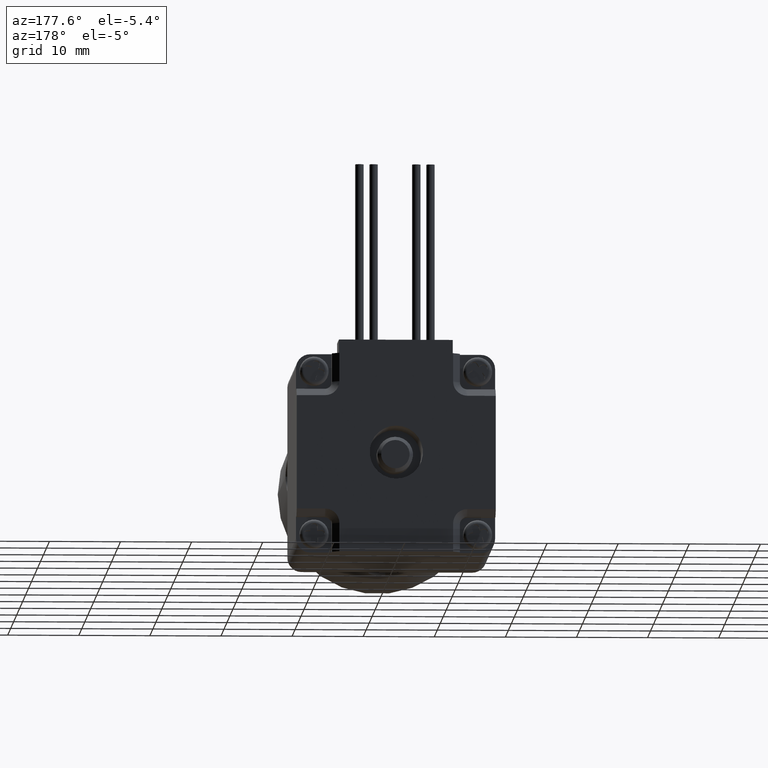
[diagram: clean part render]
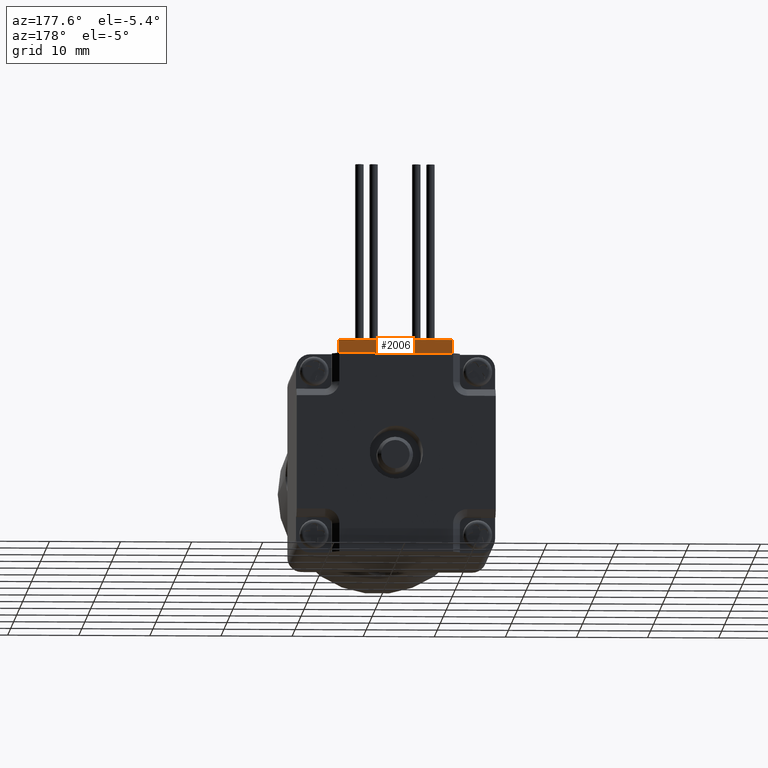
[diagram: same view with one face highlighted and labeled with its STEP entity id]
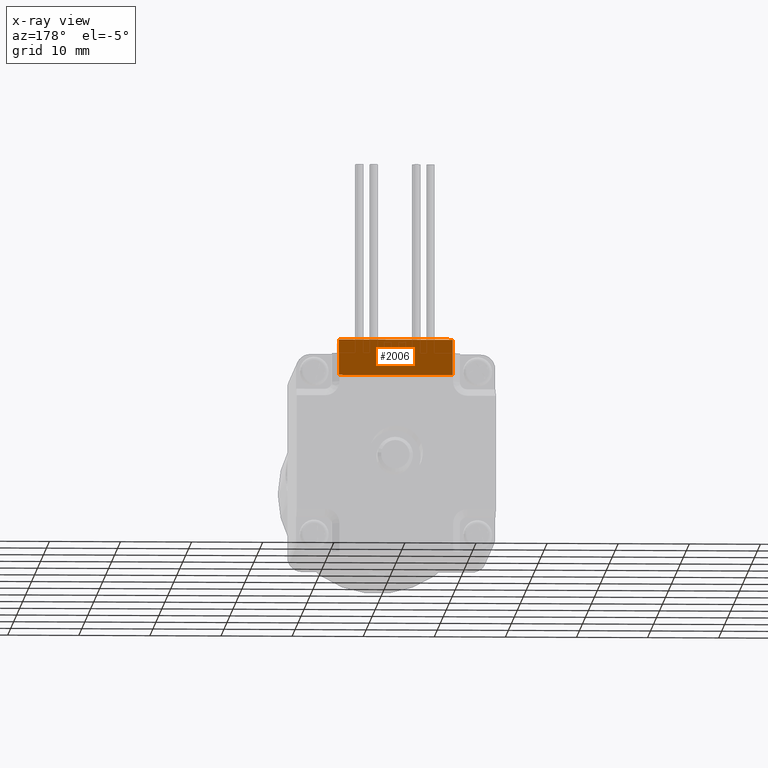
[diagram: x-ray of the same camera — body ghosted, the highlighted face saturated]
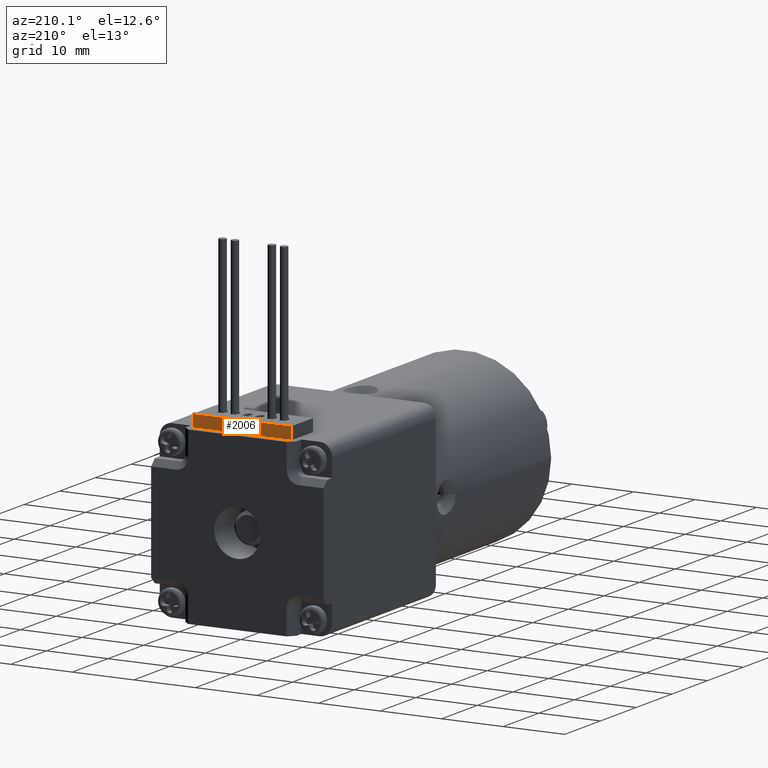
[diagram: same view with one face highlighted and labeled with its STEP entity id]
A machine part, auxiliary view. The second image highlights one B-rep face of the part: STEP entity #2006.
The next image is the same camera in x-ray: the body ghosted, the highlighted face saturated — about 0% of this face is hidden behind the body in this view.
A second angle (auxiliary view) of the same face is appended — the face is thin or edge-on in the first view.
In plain terms, the highlighted planar face has unit normal (-0, -1, 0).
Its self-contained STEP definition (entity closure, byte-faithful):
#89 = CARTESIAN_POINT ( 'NONE',  ( -8.000000000000000000, 0.000000000000000000, 2.500000000000000000 ) ) ;
#596 = VERTEX_POINT ( 'NONE', #16154 ) ;
#798 = VERTEX_POINT ( 'NONE', #24814 ) ;
#1264 = CARTESIAN_POINT ( 'NONE',  ( -8.000000000000000000, 0.000000000000000000, -2.500000000000000000 ) ) ;
#2006 = ADVANCED_FACE ( 'NONE', ( #8600 ), #13581, .F. ) ;
#2583 = EDGE_CURVE ( 'NONE', #596, #27056, #8569, .T. ) ;
#2879 = VECTOR ( 'NONE', #28799, 1000.000000000000000 ) ;
#4233 = VECTOR ( 'NONE', #6916, 1000.000000000000000 ) ;
#6916 = DIRECTION ( 'NONE',  ( -1.000000000000000000, -0.000000000000000000, -0.000000000000000000 ) ) ;
#8569 = LINE ( 'NONE', #31459, #4233 ) ;
#8600 = FACE_OUTER_BOUND ( 'NONE', #21750, .T. ) ;
#8892 = EDGE_CURVE ( 'NONE', #798, #596, #16750, .T. ) ;
#9051 = EDGE_CURVE ( 'NONE', #21996, #798, #17075, .T. ) ;
#10279 = AXIS2_PLACEMENT_3D ( 'NONE', #21099, #14044, #30732 ) ;
#10471 = DIRECTION ( 'NONE',  ( 1.000000000000000000, 0.000000000000000000, 0.000000000000000000 ) ) ;
#10828 = VECTOR ( 'NONE', #16775, 1000.000000000000000 ) ;
#13581 = PLANE ( 'NONE',  #10279 ) ;
#13904 = CARTESIAN_POINT ( 'NONE',  ( -8.000000000000000000, 0.000000000000000000, 2.500000000000000000 ) ) ;
#14044 = DIRECTION ( 'NONE',  ( 0.000000000000000000, 1.000000000000000000, 0.000000000000000000 ) ) ;
#16154 = CARTESIAN_POINT ( 'NONE',  ( 8.000000000000000000, 0.000000000000000000, -2.500000000000000000 ) ) ;
#16750 = LINE ( 'NONE', #31040, #2879 ) ;
#16775 = DIRECTION ( 'NONE',  ( 0.000000000000000000, 0.000000000000000000, 1.000000000000000000 ) ) ;
#16997 = ORIENTED_EDGE ( 'NONE', *, *, #8892, .F. ) ;
#17075 = LINE ( 'NONE', #89, #20811 ) ;
#19142 = ORIENTED_EDGE ( 'NONE', *, *, #2583, .F. ) ;
#20510 = EDGE_CURVE ( 'NONE', #27056, #21996, #23217, .T. ) ;
#20811 = VECTOR ( 'NONE', #10471, 1000.000000000000000 ) ;
#21099 = CARTESIAN_POINT ( 'NONE',  ( 0.000000000000000000, 0.000000000000000000, 0.000000000000000000 ) ) ;
#21750 = EDGE_LOOP ( 'NONE', ( #16997, #26665, #21788, #19142 ) ) ;
#21788 = ORIENTED_EDGE ( 'NONE', *, *, #20510, .F. ) ;
#21996 = VERTEX_POINT ( 'NONE', #13904 ) ;
#23217 = LINE ( 'NONE', #1264, #10828 ) ;
#23669 = CARTESIAN_POINT ( 'NONE',  ( -8.000000000000000000, 0.000000000000000000, -2.500000000000000000 ) ) ;
#24814 = CARTESIAN_POINT ( 'NONE',  ( 8.000000000000000000, 0.000000000000000000, 2.500000000000000000 ) ) ;
#26665 = ORIENTED_EDGE ( 'NONE', *, *, #9051, .F. ) ;
#27056 = VERTEX_POINT ( 'NONE', #23669 ) ;
#28799 = DIRECTION ( 'NONE',  ( -0.000000000000000000, -0.000000000000000000, -1.000000000000000000 ) ) ;
#30732 = DIRECTION ( 'NONE',  ( 0.000000000000000000, -0.000000000000000000, 1.000000000000000000 ) ) ;
#31040 = CARTESIAN_POINT ( 'NONE',  ( 8.000000000000000000, 0.000000000000000000, -2.500000000000000000 ) ) ;
#31459 = CARTESIAN_POINT ( 'NONE',  ( -8.000000000000000000, 0.000000000000000000, -2.500000000000000000 ) ) ;